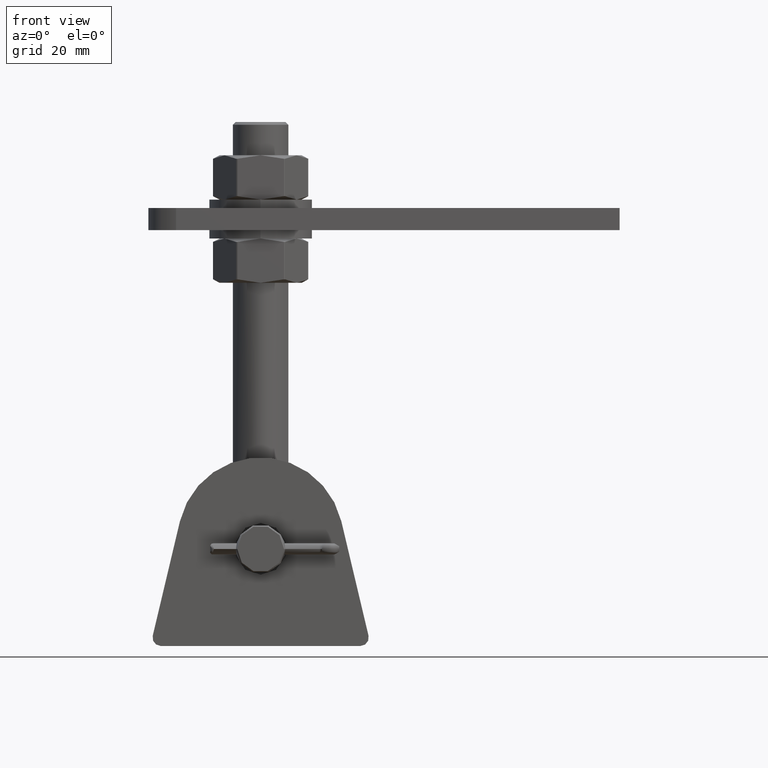
[diagram: clean part render]
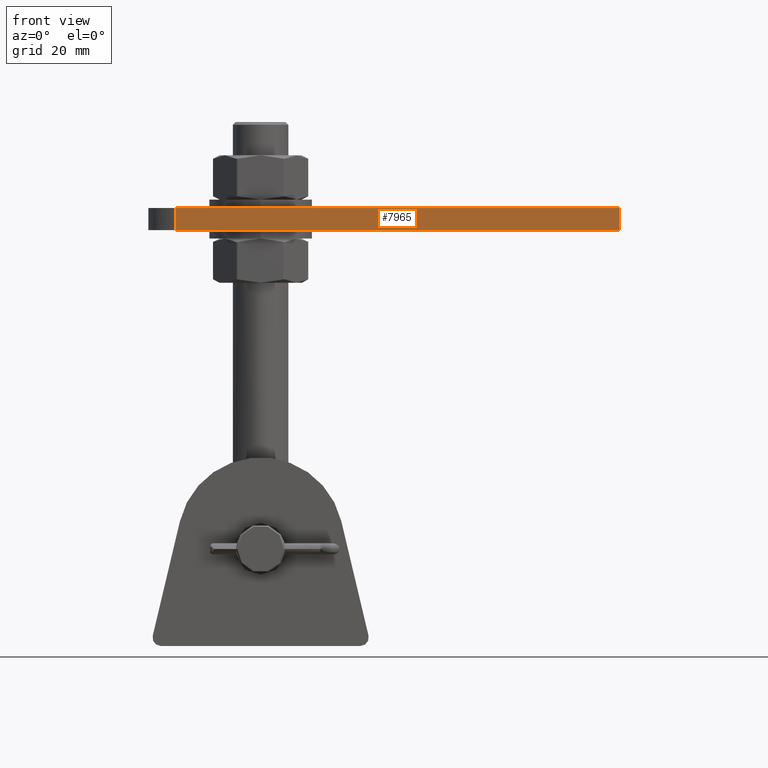
[diagram: same view with one face highlighted and labeled with its STEP entity id]
A machine part, front view. The second image highlights one B-rep face of the part: STEP entity #7965.
In plain terms, the highlighted planar face has unit normal (0, 1, 0).
Its self-contained STEP definition (entity closure, byte-faithful):
#51 = CARTESIAN_POINT ( 'NONE',  ( 84.99999999999998579, -30.00000000000000000, 4.000000000000003553 ) ) ;
#195 = VERTEX_POINT ( 'NONE', #11463 ) ;
#1045 = PLANE ( 'NONE',  #13941 ) ;
#1176 = FACE_OUTER_BOUND ( 'NONE', #10007, .T. ) ;
#1793 = LINE ( 'NONE', #13807, #12222 ) ;
#2409 = DIRECTION ( 'NONE',  ( 0.000000000000000000, 1.000000000000000000, 0.000000000000000000 ) ) ;
#2663 = ORIENTED_EDGE ( 'NONE', *, *, #7636, .T. ) ;
#5659 = DIRECTION ( 'NONE',  ( -0.000000000000000000, -0.000000000000000000, -1.000000000000000000 ) ) ;
#6018 = VECTOR ( 'NONE', #11363, 1000.000000000000000 ) ;
#6381 = LINE ( 'NONE', #11660, #6812 ) ;
#6812 = VECTOR ( 'NONE', #11601, 1000.000000000000000 ) ;
#6837 = ORIENTED_EDGE ( 'NONE', *, *, #11004, .T. ) ;
#7636 = EDGE_CURVE ( 'NONE', #195, #8796, #16888, .T. ) ;
#7906 = DIRECTION ( 'NONE',  ( 0.000000000000000000, -0.000000000000000000, 1.000000000000000000 ) ) ;
#7965 = ADVANCED_FACE ( 'NONE', ( #1176 ), #1045, .F. ) ;
#8346 = CARTESIAN_POINT ( 'NONE',  ( 84.99999999999998579, -30.00000000000000000, -4.000000000000003553 ) ) ;
#8796 = VERTEX_POINT ( 'NONE', #8346 ) ;
#9587 = VECTOR ( 'NONE', #5659, 1000.000000000000000 ) ;
#9628 = CARTESIAN_POINT ( 'NONE',  ( 84.99999999999998579, -30.00000000000000000, 4.000000000000003553 ) ) ;
#9921 = VERTEX_POINT ( 'NONE', #9628 ) ;
#10007 = EDGE_LOOP ( 'NONE', ( #10881, #6837, #2663, #15575 ) ) ;
#10881 = ORIENTED_EDGE ( 'NONE', *, *, #15261, .F. ) ;
#11004 = EDGE_CURVE ( 'NONE', #16065, #195, #1793, .T. ) ;
#11363 = DIRECTION ( 'NONE',  ( 1.000000000000000000, 0.000000000000000000, 0.000000000000000000 ) ) ;
#11463 = CARTESIAN_POINT ( 'NONE',  ( -75.00000000000002842, -30.00000000000000000, -4.000000000000003553 ) ) ;
#11601 = DIRECTION ( 'NONE',  ( 1.000000000000000000, 0.000000000000000000, 0.000000000000000000 ) ) ;
#11660 = CARTESIAN_POINT ( 'NONE',  ( -85.00000000000001421, -30.00000000000000000, 4.000000000000003553 ) ) ;
#12222 = VECTOR ( 'NONE', #15096, 1000.000000000000000 ) ;
#13807 = CARTESIAN_POINT ( 'NONE',  ( -75.00000000000002842, -30.00000000000000000, 4.000000000000003553 ) ) ;
#13941 = AXIS2_PLACEMENT_3D ( 'NONE', #17352, #2409, #7906 ) ;
#14002 = CARTESIAN_POINT ( 'NONE',  ( -75.00000000000002842, -30.00000000000000000, 4.000000000000003553 ) ) ;
#15096 = DIRECTION ( 'NONE',  ( -0.000000000000000000, 0.000000000000000000, -1.000000000000000000 ) ) ;
#15261 = EDGE_CURVE ( 'NONE', #16065, #9921, #6381, .T. ) ;
#15575 = ORIENTED_EDGE ( 'NONE', *, *, #16849, .F. ) ;
#16065 = VERTEX_POINT ( 'NONE', #14002 ) ;
#16778 = LINE ( 'NONE', #51, #9587 ) ;
#16849 = EDGE_CURVE ( 'NONE', #9921, #8796, #16778, .T. ) ;
#16872 = CARTESIAN_POINT ( 'NONE',  ( -85.00000000000001421, -30.00000000000000000, -4.000000000000003553 ) ) ;
#16888 = LINE ( 'NONE', #16872, #6018 ) ;
#17352 = CARTESIAN_POINT ( 'NONE',  ( -85.00000000000001421, -30.00000000000000000, 4.000000000000003553 ) ) ;